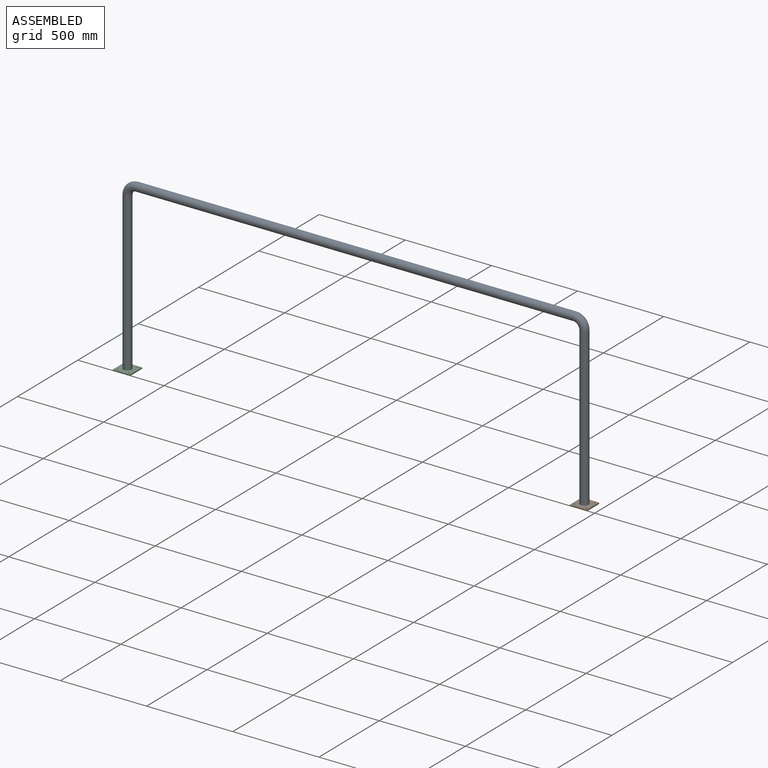
[diagram: assembled view]
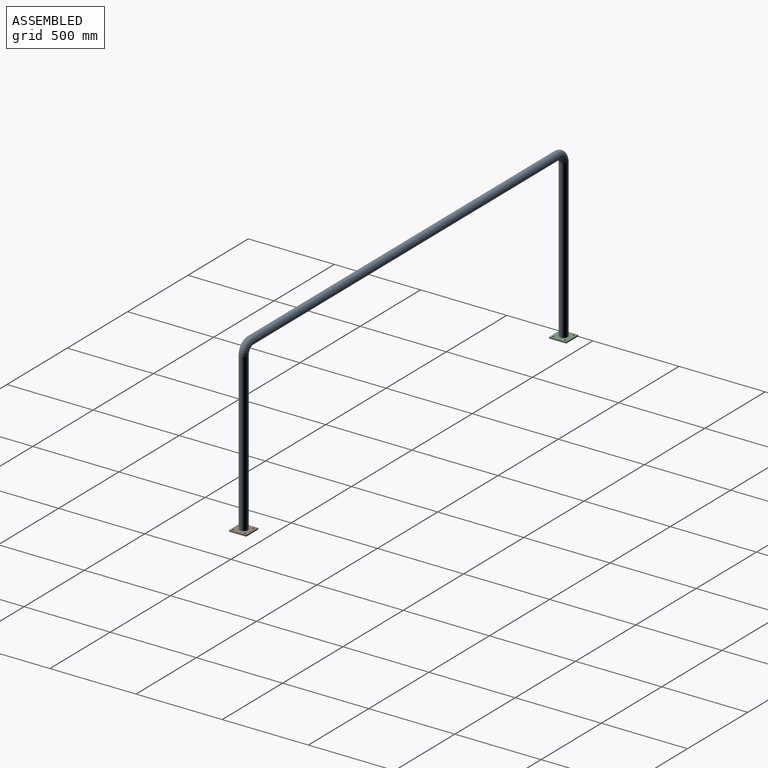
[diagram: assembled view, second angle]
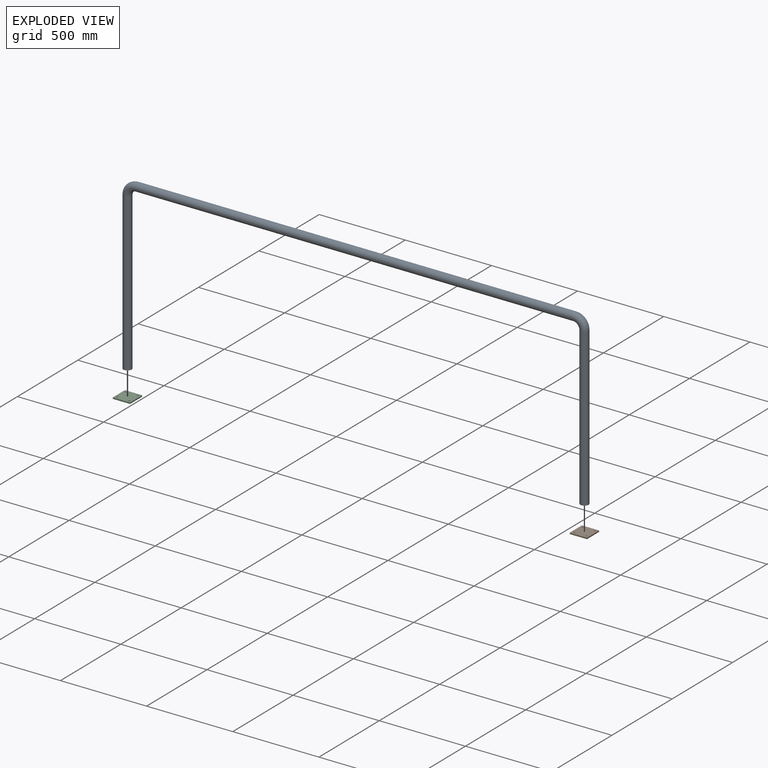
[diagram: exploded view]
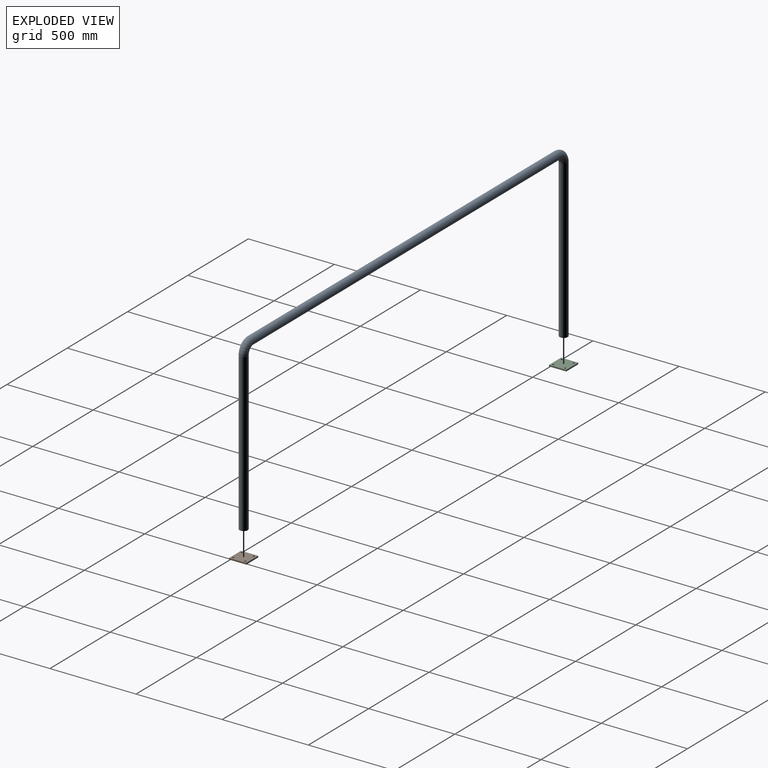
[diagram: exploded view, second angle]
ASSEMBLY  parts=3 mates=2
PART A: 7 faces, bbox 2713.2x48x998.6 mm
  f0: plane 48x48mm, normal (0,0,-1), area 1809.6mm2, adj f2
  f1: plane 48x48mm, normal (0,0,-1), area 1809.6mm2, adj f6
  f2: cylinder r=24mm len=912mm, axis (0,0,1), area 137526.4mm2, adj f0,f3
  f3: torus R=56mm, axis (0,1,0), area 13264.7mm2, adj f2,f4
  f4: cylinder r=24mm len=2540mm, axis (1,0,0), area 383023mm2, adj f3,f5
  f5: torus R=56mm, axis (0,1,0), area 13264.7mm2, adj f4,f6
  f6: cylinder r=24mm len=912mm, axis (0,0,-1), area 137526.4mm2, adj f1,f5
PART B: 10 faces, bbox 100x100x8 mm
  f0: plane 100x8mm, normal (1,0,0), area 800mm2, adj f1,f6,f8,f9
  f1: plane 100x8mm, normal (0,1,0), area 800mm2, adj f0,f2,f8,f9
  f2: plane 100x8mm, normal (-1,0,0), area 800mm2, adj f1,f6,f8,f9
  f3: cylinder r=5mm len=10mm, axis (0,0,-1), area 251.3mm2, adj f8,f9
  f4: cylinder r=5mm len=10mm, axis (0,0,-1), area 251.3mm2, adj f8,f9
  f5: cylinder r=5mm len=10mm, axis (0,0,-1), area 251.3mm2, adj f8,f9
  f6: plane 100x8mm, normal (0,-1,0), area 800mm2, adj f0,f2,f8,f9
  f7: cylinder r=5mm len=10mm, axis (0,0,-1), area 251.3mm2, adj f8,f9
  f8: plane 100x100mm, normal (0,0,1), area 9685.8mm2, adj f0,f1,f2,f3,f4,f5,f6,f7
  f9: plane 100x100mm, normal (0,0,-1), area 9685.8mm2, adj f0,f1,f2,f3,f4,f5,f6,f7
PART C: same geometry as B
PLACE A t=(-1281.09,-149.23,212.48)mm
PLACE B t=(1394.91,-149.23,-783.52)mm
PLACE C t=(-1257.09,-149.23,-783.52)mm
MATE fastened B.f8 <-> A.f6  axis (0,0,1) through (1394.91,-149.23,-779.52)mm
MATE fastened C.f8 <-> A.f2  axis (0,0,1) through (-1257.09,-149.23,-779.52)mm
